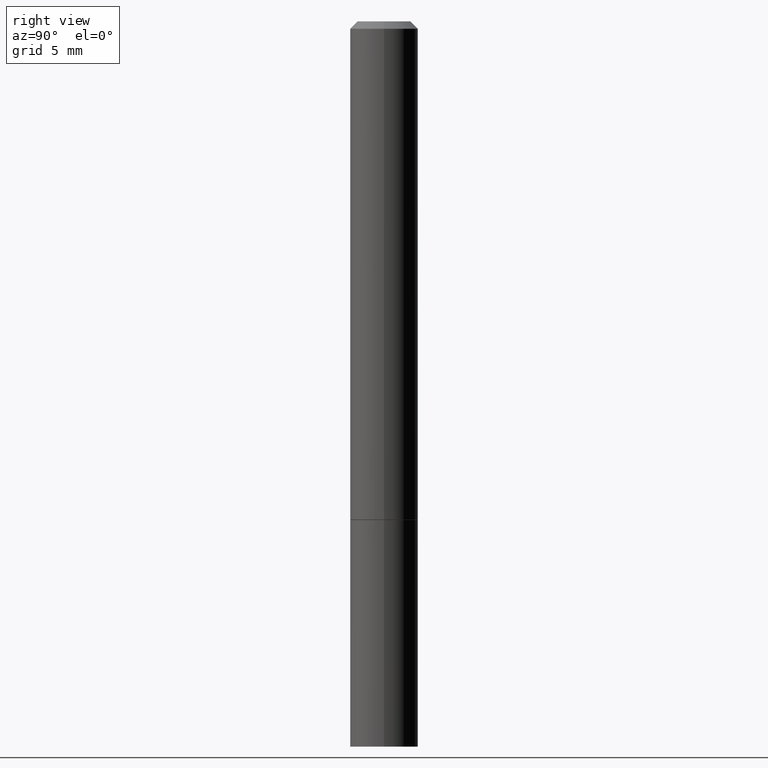
[diagram: clean part render]
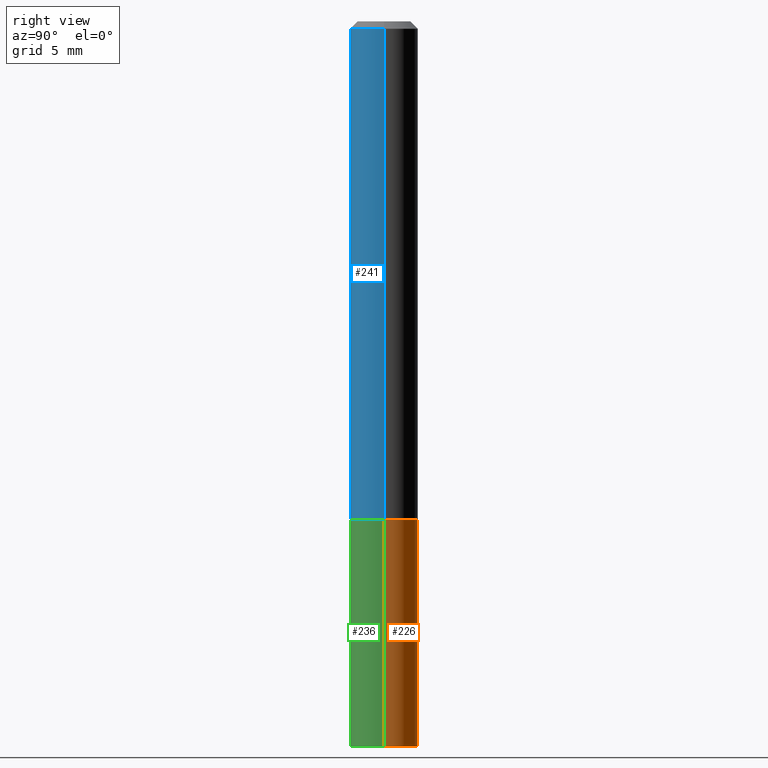
[diagram: same view with three faces highlighted in distinct colors, each labeled with its STEP entity id]
A machine part, right view with three faces highlighted in distinct colors.
Their STEP definitions:

[orange] entity #226 — the highlighted cylindrical surface (edge-blend (fillet) strip) has radius 2.3813 mm, axis along (-0, 0, 1).
#11 = VECTOR ( 'NONE', #38, 39.37007874015748143 ) ;
#23 = EDGE_CURVE ( 'NONE', #87, #221, #306, .T. ) ;
#26 = DIRECTION ( 'NONE',  ( -2.445468806185136877E-29, 3.491481338843145188E-15, 1.000000000000000000 ) ) ;
#38 = DIRECTION ( 'NONE',  ( -2.445468806185136877E-29, 3.491481338843145188E-15, 1.000000000000000000 ) ) ;
#81 = CARTESIAN_POINT ( 'NONE',  ( -0.09375000000000001388, 6.661338147750940229E-16, -4.611501647113973995E-30 ) ) ;
#87 = VERTEX_POINT ( 'NONE', #235 ) ;
#88 = EDGE_CURVE ( 'NONE', #87, #123, #256, .T. ) ;
#90 = CARTESIAN_POINT ( 'NONE',  ( 0.000000000000000000, 0.000000000000000000, 0.000000000000000000 ) ) ;
#123 = VERTEX_POINT ( 'NONE', #342 ) ;
#129 = VERTEX_POINT ( 'NONE', #200 ) ;
#145 = AXIS2_PLACEMENT_3D ( 'NONE', #90, #331, #216 ) ;
#147 = EDGE_LOOP ( 'NONE', ( #163, #303, #280, #338 ) ) ;
#163 = ORIENTED_EDGE ( 'NONE', *, *, #88, .T. ) ;
#165 = DIRECTION ( 'NONE',  ( -2.445468806185136597E-29, 3.491481338843145583E-15, 1.000000000000000000 ) ) ;
#171 = DIRECTION ( 'NONE',  ( -2.445468806185136597E-29, 3.491481338843145583E-15, 1.000000000000000000 ) ) ;
#172 = CARTESIAN_POINT ( 'NONE',  ( 3.362519608504562260E-29, -4.800786840909324930E-15, -1.375000000000000000 ) ) ;
#184 = FACE_OUTER_BOUND ( 'NONE', #147, .T. ) ;
#200 = CARTESIAN_POINT ( 'NONE',  ( -0.09375000000000001388, -5.225740944522714123E-15, -1.375000000000000000 ) ) ;
#208 = AXIS2_PLACEMENT_3D ( 'NONE', #172, #165, #341 ) ;
#213 = CARTESIAN_POINT ( 'NONE',  ( 0.09375000000000001388, -5.455439591942412434E-15, -1.375000000000000000 ) ) ;
#214 = AXIS2_PLACEMENT_3D ( 'NONE', #260, #171, #366 ) ;
#216 = DIRECTION ( 'NONE',  ( 1.000000000000000000, -6.982962677686265922E-15, 4.876176775795935793E-29 ) ) ;
#221 = VERTEX_POINT ( 'NONE', #213 ) ;
#226 = ADVANCED_FACE ( 'NONE', ( #184 ), #302, .T. ) ;
#235 = CARTESIAN_POINT ( 'NONE',  ( 0.09375000000000001388, -7.637615428719378669E-15, -2.000000000000000000 ) ) ;
#255 = EDGE_CURVE ( 'NONE', #221, #129, #311, .T. ) ;
#256 = CIRCLE ( 'NONE', #214, 0.09375000000000001388 ) ;
#260 = CARTESIAN_POINT ( 'NONE',  ( 4.890937612370273194E-29, -6.982962677686291165E-15, -2.000000000000000000 ) ) ;
#274 = CARTESIAN_POINT ( 'NONE',  ( 0.09375000000000001388, -6.546527510330875041E-16, 4.571415727308690506E-30 ) ) ;
#277 = VECTOR ( 'NONE', #26, 39.37007874015748143 ) ;
#280 = ORIENTED_EDGE ( 'NONE', *, *, #255, .F. ) ;
#286 = LINE ( 'NONE', #81, #277 ) ;
#299 = EDGE_CURVE ( 'NONE', #123, #129, #286, .T. ) ;
#302 = CYLINDRICAL_SURFACE ( 'NONE', #145, 0.09375000000000001388 ) ;
#303 = ORIENTED_EDGE ( 'NONE', *, *, #299, .T. ) ;
#306 = LINE ( 'NONE', #274, #11 ) ;
#311 = CIRCLE ( 'NONE', #208, 0.09375000000000001388 ) ;
#331 = DIRECTION ( 'NONE',  ( -2.445468806185136597E-29, 3.491481338843145583E-15, 1.000000000000000000 ) ) ;
#338 = ORIENTED_EDGE ( 'NONE', *, *, #23, .F. ) ;
#341 = DIRECTION ( 'NONE',  ( 1.000000000000000000, -6.982962677686261189E-15, 0.000000000000000000 ) ) ;
#342 = CARTESIAN_POINT ( 'NONE',  ( -0.09375000000000001388, -5.225740944522714123E-15, -2.000000000000000000 ) ) ;
#366 = DIRECTION ( 'NONE',  ( 1.000000000000000000, -6.982962677686261189E-15, 0.000000000000000000 ) ) ;

[blue] entity #241 — the highlighted cylindrical surface (edge-blend (fillet) strip) has radius 2.3812 mm, axis along (-0, 0, 1).
#7 = CIRCLE ( 'NONE', #46, 0.09374999999999984734 ) ;
#10 = EDGE_LOOP ( 'NONE', ( #64, #193, #18, #32 ) ) ;
#18 = ORIENTED_EDGE ( 'NONE', *, *, #180, .T. ) ;
#32 = ORIENTED_EDGE ( 'NONE', *, *, #336, .F. ) ;
#35 = VERTEX_POINT ( 'NONE', #44 ) ;
#44 = CARTESIAN_POINT ( 'NONE',  ( 0.09374999999999984734, -7.130013140679430017E-16, -0.02000000000000003511 ) ) ;
#46 = AXIS2_PLACEMENT_3D ( 'NONE', #279, #156, #315 ) ;
#57 = CARTESIAN_POINT ( 'NONE',  ( -0.09374999999999984734, 5.848231242562233185E-16, -0.02000000000000003511 ) ) ;
#61 = VERTEX_POINT ( 'NONE', #119 ) ;
#64 = ORIENTED_EDGE ( 'NONE', *, *, #107, .F. ) ;
#77 = CYLINDRICAL_SURFACE ( 'NONE', #325, 0.09374999999999991673 ) ;
#107 = EDGE_CURVE ( 'NONE', #61, #127, #287, .T. ) ;
#108 = DIRECTION ( 'NONE',  ( -2.445468806185136597E-29, 3.491481338843145583E-15, 1.000000000000000000 ) ) ;
#111 = CARTESIAN_POINT ( 'NONE',  ( 0.000000000000000000, 0.000000000000000000, 0.000000000000000000 ) ) ;
#119 = CARTESIAN_POINT ( 'NONE',  ( -0.09374999999999998612, -1.767428678398576714E-15, -1.373999999999999666 ) ) ;
#127 = VERTEX_POINT ( 'NONE', #57 ) ;
#135 = CARTESIAN_POINT ( 'NONE',  ( 0.09374999999999998612, -5.451948110603567849E-15, -1.373999999999999666 ) ) ;
#137 = DIRECTION ( 'NONE',  ( -2.445468806185136877E-29, 3.491481338843145188E-15, 1.000000000000000000 ) ) ;
#150 = AXIS2_PLACEMENT_3D ( 'NONE', #174, #108, #230 ) ;
#156 = DIRECTION ( 'NONE',  ( -2.445468806185136597E-29, 3.491481338843145583E-15, 1.000000000000000000 ) ) ;
#174 = CARTESIAN_POINT ( 'NONE',  ( 3.360074139698376657E-29, -4.797295359570480345E-15, -1.373999999999999666 ) ) ;
#175 = DIRECTION ( 'NONE',  ( -2.445468806185136877E-29, 3.491481338843145188E-15, 1.000000000000000000 ) ) ;
#180 = EDGE_CURVE ( 'NONE', #355, #35, #323, .T. ) ;
#193 = ORIENTED_EDGE ( 'NONE', *, *, #252, .T. ) ;
#211 = VECTOR ( 'NONE', #175, 39.37007874015748143 ) ;
#230 = DIRECTION ( 'NONE',  ( 1.000000000000000000, -6.982962677686263555E-15, 0.000000000000000000 ) ) ;
#233 = FACE_OUTER_BOUND ( 'NONE', #10, .T. ) ;
#237 = CARTESIAN_POINT ( 'NONE',  ( -0.09374999999999991673, 6.661338147750933326E-16, -4.611501647113969791E-30 ) ) ;
#241 = ADVANCED_FACE ( 'NONE', ( #233 ), #77, .T. ) ;
#252 = EDGE_CURVE ( 'NONE', #61, #355, #269, .T. ) ;
#263 = VECTOR ( 'NONE', #137, 39.37007874015748143 ) ;
#269 = CIRCLE ( 'NONE', #150, 0.09374999999999998612 ) ;
#279 = CARTESIAN_POINT ( 'NONE',  ( 4.890937612370281041E-31, -6.982962677686302702E-17, -0.02000000000000003511 ) ) ;
#287 = LINE ( 'NONE', #237, #211 ) ;
#315 = DIRECTION ( 'NONE',  ( 1.000000000000000000, -6.982962677686266711E-15, 0.000000000000000000 ) ) ;
#316 = DIRECTION ( 'NONE',  ( 1.000000000000000000, -6.982962677686266711E-15, 4.876176775795935793E-29 ) ) ;
#323 = LINE ( 'NONE', #365, #263 ) ;
#325 = AXIS2_PLACEMENT_3D ( 'NONE', #111, #364, #316 ) ;
#336 = EDGE_CURVE ( 'NONE', #127, #35, #7, .T. ) ;
#355 = VERTEX_POINT ( 'NONE', #135 ) ;
#364 = DIRECTION ( 'NONE',  ( -2.445468806185136597E-29, 3.491481338843145583E-15, 1.000000000000000000 ) ) ;
#365 = CARTESIAN_POINT ( 'NONE',  ( 0.09374999999999991673, -6.546527510330869125E-16, 4.571415727308685602E-30 ) ) ;

[green] entity #236 — the highlighted cylindrical surface (edge-blend (fillet) strip) has radius 2.3813 mm, axis along (-0, 0, 1).
#9 = ORIENTED_EDGE ( 'NONE', *, *, #185, .T. ) ;
#11 = VECTOR ( 'NONE', #38, 39.37007874015748143 ) ;
#23 = EDGE_CURVE ( 'NONE', #87, #221, #306, .T. ) ;
#26 = DIRECTION ( 'NONE',  ( -2.445468806185136877E-29, 3.491481338843145188E-15, 1.000000000000000000 ) ) ;
#38 = DIRECTION ( 'NONE',  ( -2.445468806185136877E-29, 3.491481338843145188E-15, 1.000000000000000000 ) ) ;
#54 = DIRECTION ( 'NONE',  ( 1.000000000000000000, -6.982962677686265922E-15, 4.876176775795935793E-29 ) ) ;
#55 = DIRECTION ( 'NONE',  ( -2.445468806185136597E-29, 3.491481338843145583E-15, 1.000000000000000000 ) ) ;
#72 = EDGE_LOOP ( 'NONE', ( #155, #9, #298, #75 ) ) ;
#75 = ORIENTED_EDGE ( 'NONE', *, *, #91, .F. ) ;
#80 = AXIS2_PLACEMENT_3D ( 'NONE', #206, #254, #203 ) ;
#81 = CARTESIAN_POINT ( 'NONE',  ( -0.09375000000000001388, 6.661338147750940229E-16, -4.611501647113973995E-30 ) ) ;
#87 = VERTEX_POINT ( 'NONE', #235 ) ;
#91 = EDGE_CURVE ( 'NONE', #129, #221, #120, .T. ) ;
#96 = CYLINDRICAL_SURFACE ( 'NONE', #327, 0.09375000000000001388 ) ;
#102 = CIRCLE ( 'NONE', #349, 0.09375000000000001388 ) ;
#109 = CARTESIAN_POINT ( 'NONE',  ( 4.890937612370273194E-29, -6.982962677686291165E-15, -2.000000000000000000 ) ) ;
#120 = CIRCLE ( 'NONE', #80, 0.09375000000000001388 ) ;
#123 = VERTEX_POINT ( 'NONE', #342 ) ;
#129 = VERTEX_POINT ( 'NONE', #200 ) ;
#136 = DIRECTION ( 'NONE',  ( -2.445468806185136597E-29, 3.491481338843145583E-15, 1.000000000000000000 ) ) ;
#155 = ORIENTED_EDGE ( 'NONE', *, *, #299, .F. ) ;
#185 = EDGE_CURVE ( 'NONE', #123, #87, #102, .T. ) ;
#200 = CARTESIAN_POINT ( 'NONE',  ( -0.09375000000000001388, -5.225740944522714123E-15, -1.375000000000000000 ) ) ;
#203 = DIRECTION ( 'NONE',  ( 1.000000000000000000, -6.982962677686261189E-15, 0.000000000000000000 ) ) ;
#206 = CARTESIAN_POINT ( 'NONE',  ( 3.362519608504562260E-29, -4.800786840909324930E-15, -1.375000000000000000 ) ) ;
#213 = CARTESIAN_POINT ( 'NONE',  ( 0.09375000000000001388, -5.455439591942412434E-15, -1.375000000000000000 ) ) ;
#221 = VERTEX_POINT ( 'NONE', #213 ) ;
#235 = CARTESIAN_POINT ( 'NONE',  ( 0.09375000000000001388, -7.637615428719378669E-15, -2.000000000000000000 ) ) ;
#236 = ADVANCED_FACE ( 'NONE', ( #273 ), #96, .T. ) ;
#250 = CARTESIAN_POINT ( 'NONE',  ( 0.000000000000000000, 0.000000000000000000, 0.000000000000000000 ) ) ;
#254 = DIRECTION ( 'NONE',  ( -2.445468806185136597E-29, 3.491481338843145583E-15, 1.000000000000000000 ) ) ;
#273 = FACE_OUTER_BOUND ( 'NONE', #72, .T. ) ;
#274 = CARTESIAN_POINT ( 'NONE',  ( 0.09375000000000001388, -6.546527510330875041E-16, 4.571415727308690506E-30 ) ) ;
#277 = VECTOR ( 'NONE', #26, 39.37007874015748143 ) ;
#286 = LINE ( 'NONE', #81, #277 ) ;
#298 = ORIENTED_EDGE ( 'NONE', *, *, #23, .T. ) ;
#299 = EDGE_CURVE ( 'NONE', #123, #129, #286, .T. ) ;
#306 = LINE ( 'NONE', #274, #11 ) ;
#327 = AXIS2_PLACEMENT_3D ( 'NONE', #250, #136, #54 ) ;
#342 = CARTESIAN_POINT ( 'NONE',  ( -0.09375000000000001388, -5.225740944522714123E-15, -2.000000000000000000 ) ) ;
#346 = DIRECTION ( 'NONE',  ( 1.000000000000000000, -6.982962677686261189E-15, 0.000000000000000000 ) ) ;
#349 = AXIS2_PLACEMENT_3D ( 'NONE', #109, #55, #346 ) ;